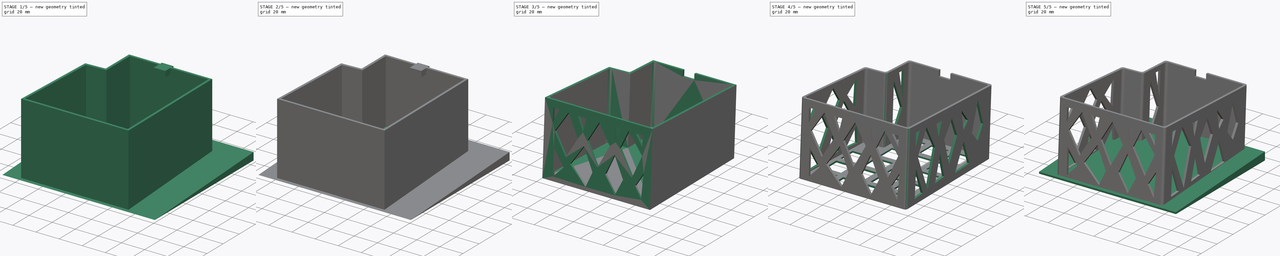
[diagram: build sequence overview — one tinted view per stage of 5, left to right]
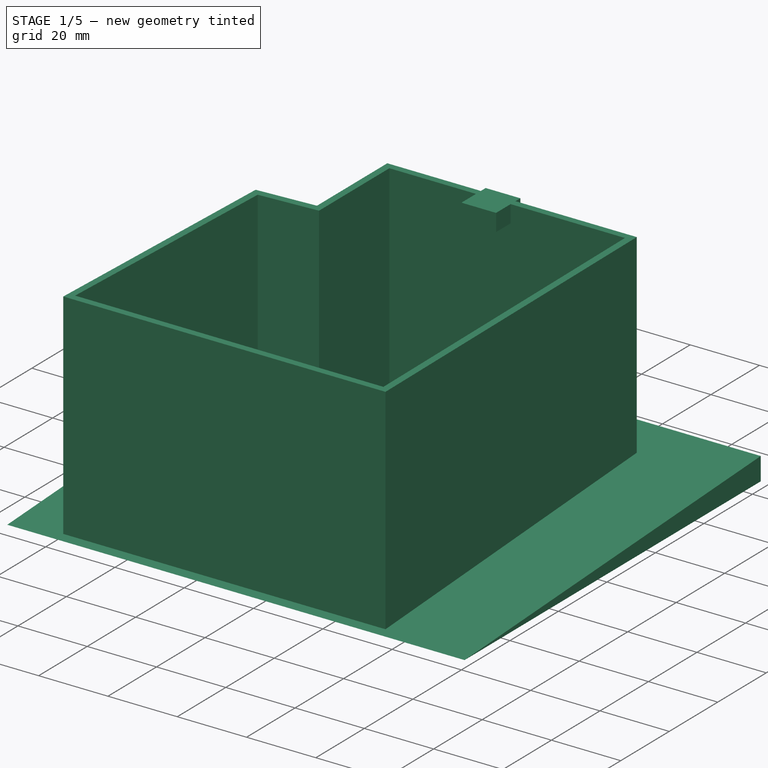
[diagram: stage 1 of 5 — iso view after this stage's code; geometry added in this stage tinted green]
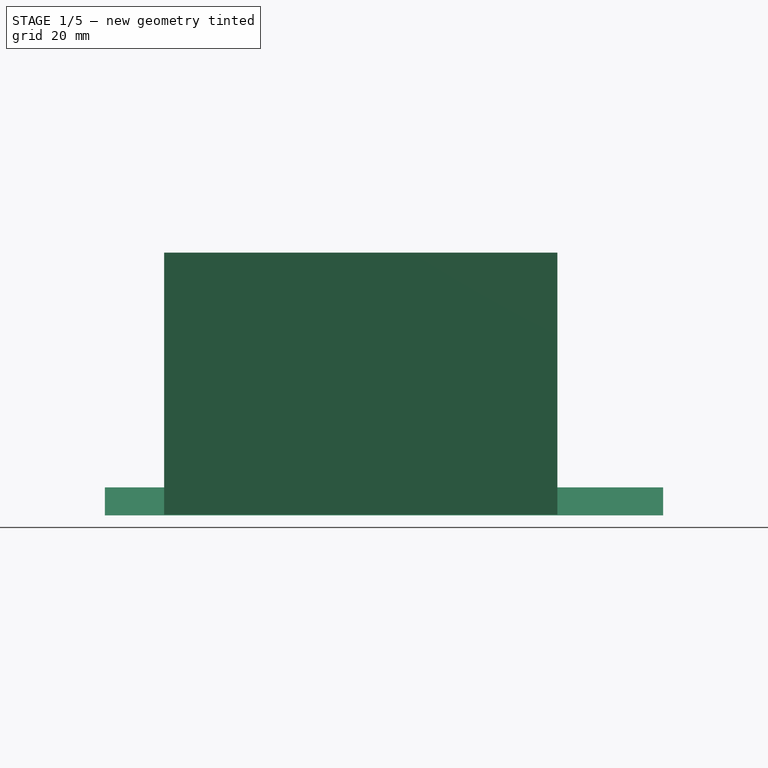
[diagram: stage 1 of 5 — front view after this stage's code; geometry added in this stage tinted green]
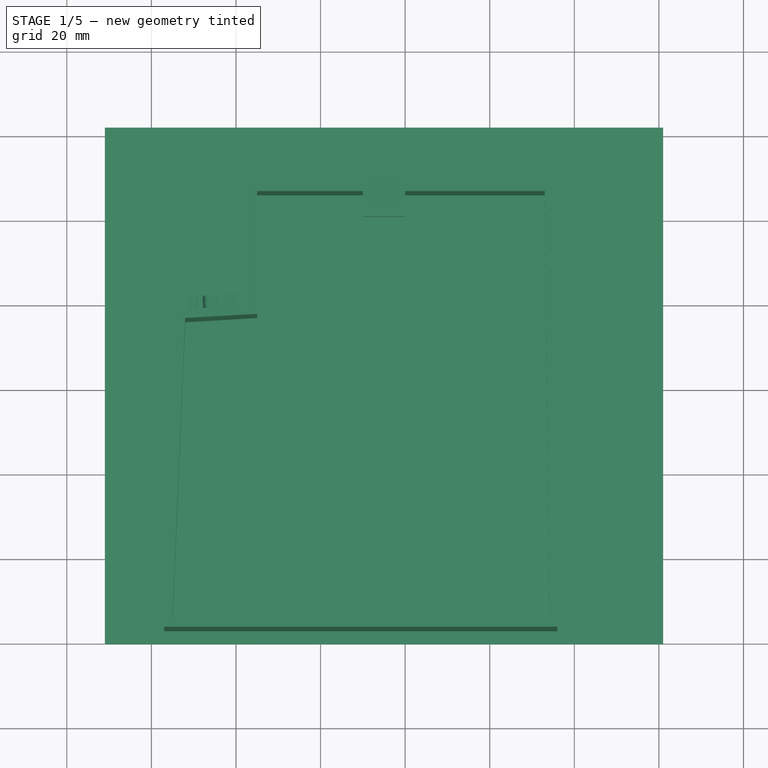
[diagram: stage 1 of 5 — top view after this stage's code; geometry added in this stage tinted green]
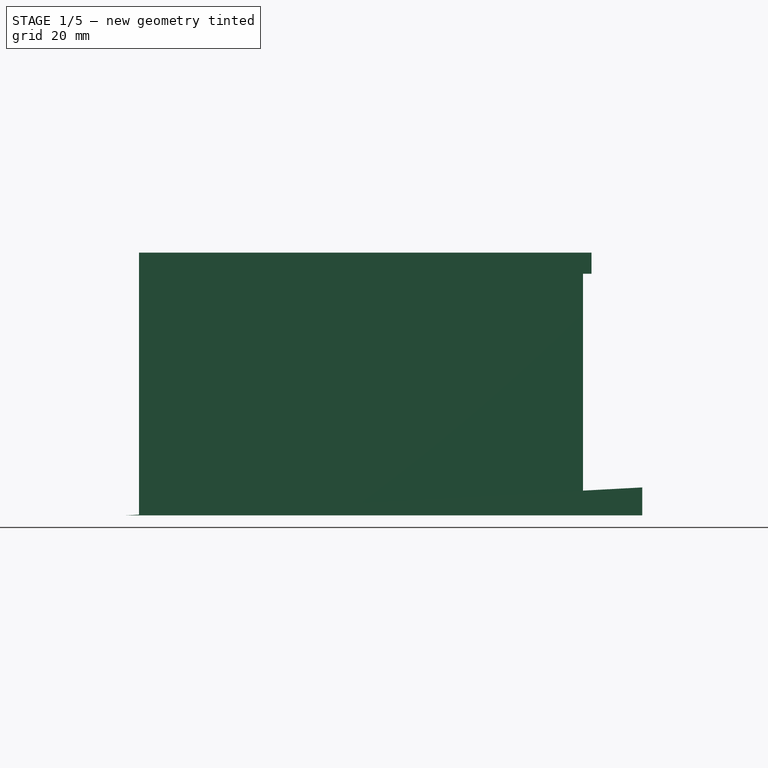
[diagram: stage 1 of 5 — right view after this stage's code; geometry added in this stage tinted green]
FCSTD DOCUMENT  (FreeCAD 0.16R6700 (Git))
Label: Essenza-Bucket-v2
License: FreeArt
LicenseURL: http://artlibre.org/licence/lal
objects: Part::Plane×121, Part::MultiFuse×12, Part::Feature×8, Sketcher::SketchObject×7, App::MeasureDistance×7, Part::Extrusion×4, Part::FeaturePython×4, PartDesign::Pocket×4, Part::Cut×3, Part::Common×2, Part::Fuse×2, PartDesign::Fillet×2, Part::Box×1, Part::Part2DObjectPython×1, PartDesign::Pad×1
note: 177 computed .brp shape members not serialized (recipe doc carries the construction recipe); baked Part::Feature solids carry a one-line shape summary decoded from their .brp

FEATURE [Part::Feature] wire003
  shape: bbox 93 x 105 x 2e-07 mm, 1 faces, 0 solids (baked)
FEATURE [Part::Feature] wire004
  shape: bbox 89 x 101 x 2e-07 mm, 1 faces, 0 solids (baked)
FEATURE [Part::Cut] difference001
  Base = -> wire003
  Tool = -> wire004
FEATURE [Part::Extrusion] LinearExtrude002
  Base = -> difference001
  Dir = (0,0,62)
  Solid = true
FEATURE [Part::Feature] Matrix_Deformation001
  Placement = pos=(-10,-0.1,-0.1) rot=(0.57735,0.57735,0.57735;2.0944rad)
  shape: bbox 132 x 122.1 x 6.6 mm, 5 faces (baked)
FEATURE [Part::Box] cube
  Height = 5
  Length = 10
  Placement = pos=(50,100,57) rot=(0,0,1;0rad)
  Width = 10
FEATURE [Part::Fuse] union001
  Base = -> Matrix_Deformation001
  Tool = -> cube
FEATURE [Sketcher::SketchObject] Sketch004
  Placement = pos=(0,107.842,-5.84051) rot=(0,0.725975,0.687721;3.14159rad)
  Support = -> Pocket003 [Face188]
  sketch-geometry (28):
    g0: LineSegment StartX=-84.7177 StartY=11.9218 StartZ=0 EndX=-79.8609 EndY=11.9218 EndZ=0
    g1: LineSegment StartX=-79.8609 StartY=11.9218 StartZ=0 EndX=-84.7177 EndY=22.3448 EndZ=0
    g2: LineSegment StartX=-84.7177 StartY=22.3448 StartZ=0 EndX=-84.7177 EndY=11.9218 EndZ=0
    g3: LineSegment StartX=-84.9158 StartY=34.0002 StartZ=0 EndX=-73.0329 EndY=11.2406 EndZ=0
    g4: LineSegment StartX=-73.0329 StartY=11.2406 StartZ=0 EndX=-66.8192 EndY=26.5122 EndZ=0
    g5: LineSegment StartX=-66.8192 StartY=26.5122 StartZ=0 EndX=-79.0449 EndY=42.8124 EndZ=0
    g6: LineSegment StartX=-79.0449 StartY=42.8124 StartZ=0 EndX=-84.9158 EndY=34.0002 EndZ=0
    g7: LineSegment StartX=-85.6071 StartY=53.9888 StartZ=0 EndX=-86.1978 EndY=40.9342 EndZ=0
    g8: LineSegment StartX=-86.1978 StartY=40.9342 StartZ=0 EndX=-81.0931 EndY=53.9888 EndZ=0
    g9: LineSegment StartX=-81.0931 StartY=53.9888 StartZ=0 EndX=-85.6071 EndY=53.9888 EndZ=0
    g10: LineSegment StartX=-73.5448 StartY=46.852 StartZ=0 EndX=-63.5758 EndY=33.6804 EndZ=0
    g11: LineSegment StartX=-63.5758 StartY=33.6804 StartZ=0 EndX=-60.4219 EndY=44.9094 EndZ=0
    g12: LineSegment StartX=-60.4219 StartY=44.9094 StartZ=0 EndX=-68.1848 EndY=56.0531 EndZ=0
    g13: LineSegment StartX=-68.1848 StartY=56.0531 StartZ=0 EndX=-73.5448 EndY=46.852 EndZ=0
    g14: LineSegment StartX=-43.0197 StartY=56.3429 StartZ=0 EndX=-50.6216 EndY=44.0218 EndZ=0
    g15: LineSegment StartX=-50.6216 StartY=44.0218 StartZ=0 EndX=-41.1773 EndY=33.5585 EndZ=0
    g16: LineSegment StartX=-41.1773 StartY=33.5585 StartZ=0 EndX=-33.3271 EndY=43.5145 EndZ=0
    g17: LineSegment StartX=-33.3271 StartY=43.5145 StartZ=0 EndX=-43.0197 EndY=56.3429 EndZ=0
    g18: LineSegment StartX=-54.6851 StartY=38.7128 StartZ=0 EndX=-59.0135 EndY=28.5351 EndZ=0
    g19: LineSegment StartX=-59.0135 StartY=28.5351 StartZ=0 EndX=-49.3085 EndY=16.0428 EndZ=0
    g20: LineSegment StartX=-49.3085 StartY=16.0428 StartZ=0 EndX=-43.8876 EndY=26.3453 EndZ=0
    g21: LineSegment StartX=-43.8876 StartY=26.3453 StartZ=0 EndX=-54.6851 EndY=38.7128 EndZ=0
    g22: LineSegment StartX=-62.3586 StartY=21.0051 StartZ=0 EndX=-65.8909 EndY=11.5879 EndZ=0
    g23: LineSegment StartX=-65.8909 StartY=11.5879 StartZ=0 EndX=-56.7565 EndY=11.5879 EndZ=0
    g24: LineSegment StartX=-56.7565 StartY=11.5879 StartZ=0 EndX=-62.3586 EndY=21.0051 EndZ=0
    g25: LineSegment StartX=-33.8502 StartY=29.4647 StartZ=0 EndX=-42.7702 EndY=12.2259 EndZ=0
    g26: LineSegment StartX=-42.7702 StartY=12.2259 StartZ=0 EndX=-35.09 EndY=11.7205 EndZ=0
    g27: LineSegment StartX=-35.09 StartY=11.7205 StartZ=0 EndX=-33.8502 EndY=29.4647 EndZ=0
  constraints (32):
    c: Horizontal(g0)
    c: Coincident(g0,g1)
    c: Coincident(g1,g2)
    c: Coincident(g2,g0)
    c: Vertical(g2)
    c: Coincident(g3,g4)
    c: Coincident(g4,g5)
    c: Coincident(g5,g6)
    c: Coincident(g6,g3)
    c: Coincident(g7,g8)
    c: Coincident(g8,g9)
    c: Coincident(g9,g7)
    c: Horizontal(g9)
    c: Coincident(g10,g11)
    c: Coincident(g11,g12)
    c: Coincident(g12,g13)
    c: Coincident(g13,g10)
    c: Coincident(g14,g15)
    c: Coincident(g15,g16)
    c: Coincident(g16,g17)
    c: Coincident(g17,g14)
    c: Coincident(g18,g19)
    c: Coincident(g19,g20)
    c: Coincident(g20,g21)
    c: Coincident(g21,g18)
    c: Coincident(g22,g23)
    c: Horizontal(g23)
    c: Coincident(g23,g24)
    c: Coincident(g24,g22)
    c: Coincident(g25,g26)
    c: Coincident(g26,g27)
    c: Coincident(g27,g25)
FEATURE [Sketcher::SketchObject] Sketch005
  Placement = pos=(-4.42759,75.1588,-4.07045) rot=(0.999088,0.030993,0.02936;1.5176rad)
FEATURE [Sketcher::SketchObject] Sketch006
  Placement = pos=(-4.55172,77.2661,-4.18458) rot=(-0.020206,0.725827,0.687581;3.18425rad)
  sketch-geometry (8):
    g0: LineSegment StartX=-19.9614 StartY=58.8 StartZ=0 EndX=-23.678 EndY=52.5 EndZ=0
    g1: LineSegment StartX=-23.678 StartY=52.5 StartZ=0 EndX=-21 EndY=48.3 EndZ=0
    g2: LineSegment StartX=-21 StartY=48.3 StartZ=0 EndX=-18.9 EndY=51.4127 EndZ=0
    g3: LineSegment StartX=-18.9 StartY=51.4127 StartZ=0 EndX=-19.9614 EndY=58.8 EndZ=0
    g4: LineSegment StartX=-15.6639 StartY=48.3 StartZ=0 EndX=-23.1 EndY=35.7 EndZ=0
    g5: LineSegment StartX=-23.1 StartY=35.7 StartZ=0 EndX=-19.7291 EndY=25.2 EndZ=0
    g6: LineSegment StartX=-19.7291 StartY=25.2 StartZ=0 EndX=-15.1994 EndY=39.9 EndZ=0
    g7: LineSegment StartX=-15.1994 StartY=39.9 StartZ=0 EndX=-15.6639 EndY=48.3 EndZ=0
  constraints (8):
    c: Coincident(g0,g1)
    c: Coincident(g1,g2)
    c: Coincident(g2,g3)
    c: Coincident(g3,g0)
    c: Coincident(g4,g5)
    c: Coincident(g5,g6)
    c: Coincident(g6,g7)
    c: Coincident(g7,g4)
FEATURE [Part::Part2DObjectPython] ShapeString  # Draft 2D object (typed FeaturePython)
  FontFile = <path>
  Placement = pos=(21,80,5) rot=(-0.020205,0.725827,0.687581;3.18425rad)
  Size = 5
  String = ERL
  Tracking = 14
FEATURE [PartDesign::Pad] Pad
  Length = 5
  Length2 = 100
  Midplane = true
  Placement = pos=(21,80,5) rot=(-0.020205,0.725827,0.687581;3.18425rad)
  Reversed = true
  Sketch = -> ShapeString
  Type = 0
FEATURE [App::MeasureDistance] Distance  label="Distance: 92,8873 mm"
  Distance = 92.8873
  P1 = (3.09004,8.59622,61.6253)
  P2 = (95.9773,8.73335,61.6179)
FEATURE [App::MeasureDistance] Distance001  label="Distance: 75,1861 mm"
  Distance = 75.1861
  P1 = (5.8976,6.3485,61.747)
  P2 = (8.43575,81.3818,57.6834)
FEATURE [App::MeasureDistance] Distance002  label="Distance: 89,4206 mm"
  Distance = 89.4206
  P1 = (5.88777,78.4371,57.8429)
  P2 = (95.3048,79.2354,57.7996)
FEATURE [App::MeasureDistance] Distance003  label="Distance: 105,005 mm"
  Distance = 105.005
  P1 = (76.4132,111.195,56.0688)
  P2 = (75.4242,6.3485,61.747)
FEATURE [App::MeasureDistance] Distance004  label="Distance: 72,1032 mm"
  Distance = 72.1032
  P1 = (23,100.802,56.6316)
  P2 = (95.1024,100.462,56.65)
FEATURE [App::MeasureDistance] Distance005  label="Distance: 61,9739 mm"
  Distance = 61.9739
  P1 = (49.1422,6.3485,61.747)
  P2 = (51.1325,2.99875,-0.104213)
FEATURE [App::MeasureDistance] Distance006  label="Distance: 56,3316 mm"
  Distance = 56.3316
  P1 = (68.5024,111.195,56.0688)
  P2 = (65.7883,108.152,-0.115117)
note: 1 file-system path scrubbed to <path> (originals preserved in the JSON sidecar)
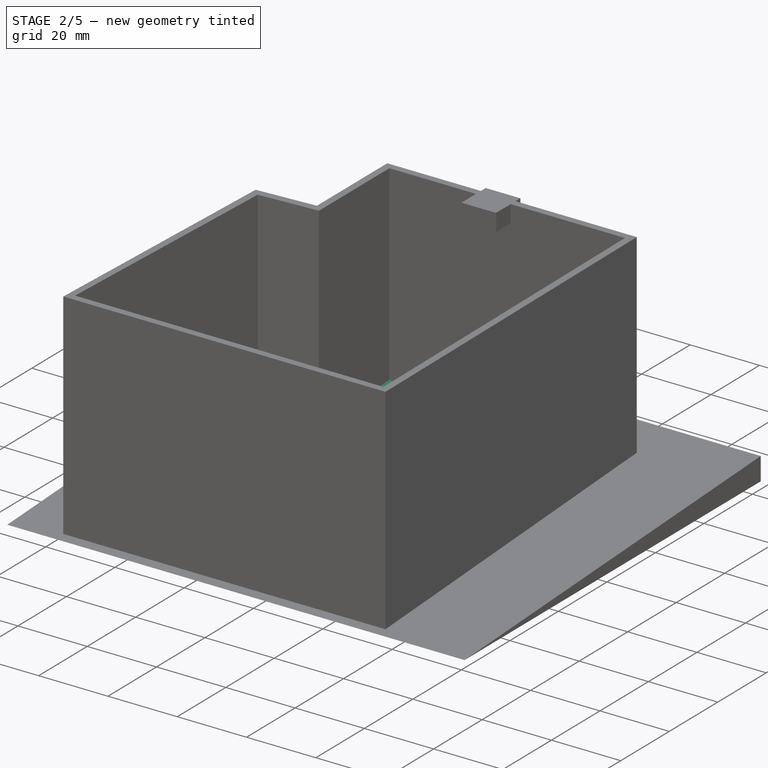
[diagram: stage 2 of 5 — iso view after this stage's code; geometry added in this stage tinted green]
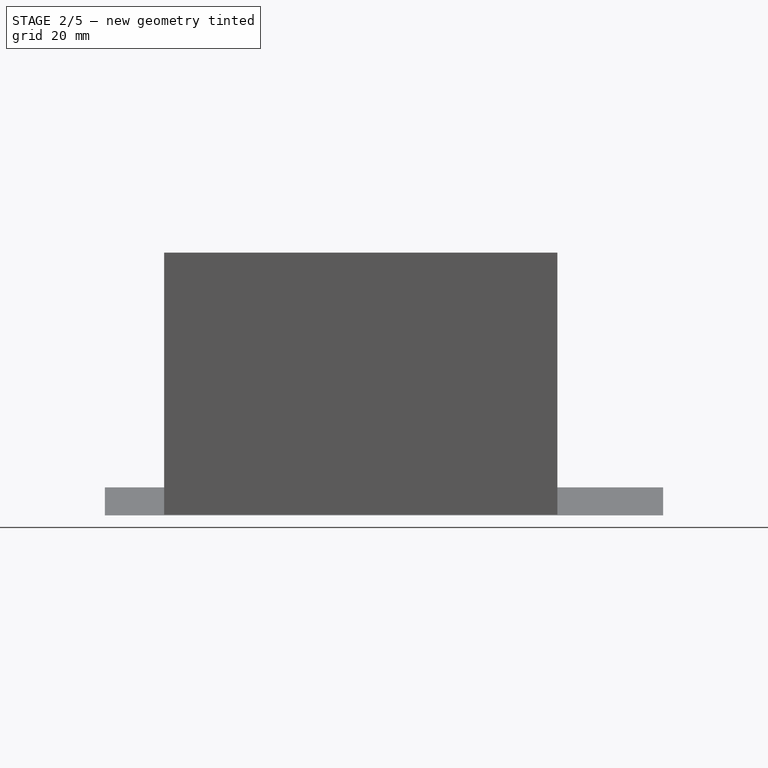
[diagram: stage 2 of 5 — front view after this stage's code; geometry added in this stage tinted green]
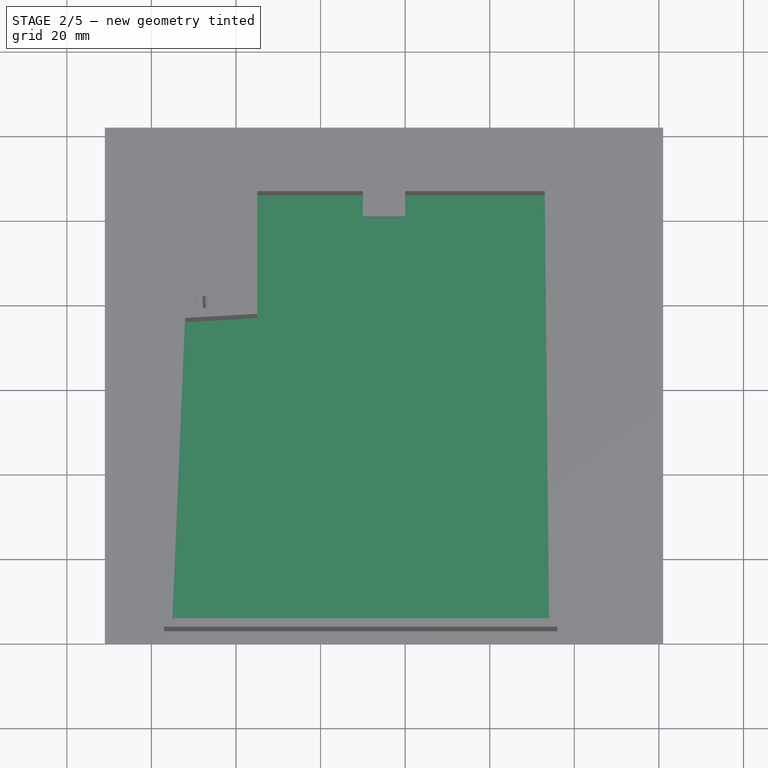
[diagram: stage 2 of 5 — top view after this stage's code; geometry added in this stage tinted green]
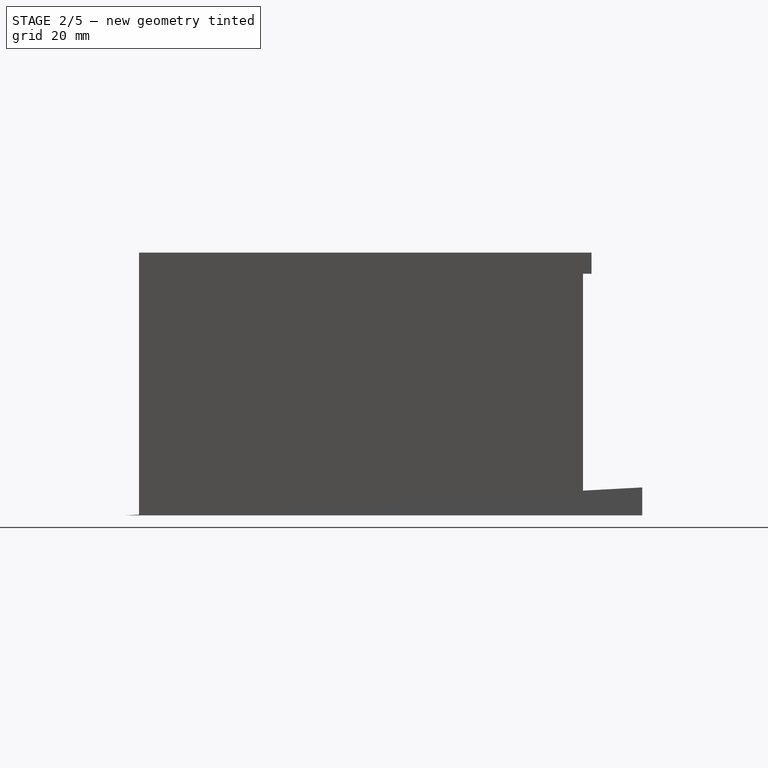
[diagram: stage 2 of 5 — right view after this stage's code; geometry added in this stage tinted green]
FEATURE [Part::Feature] wire
  shape: bbox 89 x 101 x 2e-07 mm, 1 faces, 0 solids (baked)
FEATURE [Part::Feature] wire001
  shape: bbox 120 x 120 x 2e-07 mm, 1 faces, 0 solids (baked)
FEATURE [Part::Plane] square
  Length = 15
  Placement = pos=(2.5,-97.5,0) rot=(0,0,1;0rad)
  Width = 15
FEATURE [Part::Plane] square001 .. square010  x10 (patterned run collapsed; names and placements below)
  Length = 15
  Width = 15
  placements: 10 in arithmetic series — first pos=(22.5,-97.5,0) rot=(0,0,1;0rad), step (20,0,0), last pos=(202.5,-97.5,0) rot=(0,0,1;0rad)
FEATURE [Part::MultiFuse] Group
  Shapes = -> [square,square001,square002,square003,square004,square005,square006,square007,square008,square009,square010]
FEATURE [Part::Plane] square011 .. square021  x11 (patterned run collapsed; names and placements below)
  Length = 15
  Width = 15
  placements: 11 in arithmetic series — first pos=(2.5,-77.5,0) rot=(0,0,1;0rad), step (20,0,0), last pos=(202.5,-77.5,0) rot=(0,0,1;0rad)
FEATURE [Part::MultiFuse] Group001
  Shapes = -> [square011,square012,square013,square014,square015,square016,square017,square018,square019,square020,square021]
FEATURE [Part::Plane] square022 .. square032  x11 (patterned run collapsed; names and placements below)
  Length = 15
  Width = 15
  placements: 11 in arithmetic series — first pos=(2.5,-57.5,0) rot=(0,0,1;0rad), step (20,0,0), last pos=(202.5,-57.5,0) rot=(0,0,1;0rad)
FEATURE [Part::MultiFuse] Group002
  Shapes = -> [square022,square023,square024,square025,square026,square027,square028,square029,square030,square031,square032]
FEATURE [Part::Plane] square033 .. square043  x11 (patterned run collapsed; names and placements below)
  Length = 15
  Width = 15
  placements: 11 in arithmetic series — first pos=(2.5,-37.5,0) rot=(0,0,1;0rad), step (20,0,0), last pos=(202.5,-37.5,0) rot=(0,0,1;0rad)
FEATURE [Part::MultiFuse] Group003
  Shapes = -> [square033,square034,square035,square036,square037,square038,square039,square040,square041,square042,square043]
FEATURE [Part::Plane] square044 .. square054  x11 (patterned run collapsed; names and placements below)
  Length = 15
  Width = 15
  placements: 11 in arithmetic series — first pos=(2.5,-17.5,0) rot=(0,0,1;0rad), step (20,0,0), last pos=(202.5,-17.5,0) rot=(0,0,1;0rad)
FEATURE [Part::MultiFuse] Group004
  Shapes = -> [square044,square045,square046,square047,square048,square049,square050,square051,square052,square053,square054]
FEATURE [Part::Plane] square055 .. square065  x11 (patterned run collapsed; names and placements below)
  Length = 15
  Width = 15
  placements: 11 in arithmetic series — first pos=(2.5,2.5,0) rot=(0,0,1;0rad), step (20,0,0), last pos=(202.5,2.5,0) rot=(0,0,1;0rad)
FEATURE [Part::MultiFuse] Group005
  Shapes = -> [square055,square056,square057,square058,square059,square060,square061,square062,square063,square064,square065]
FEATURE [Part::Plane] square066 .. square076  x11 (patterned run collapsed; names and placements below)
  Length = 15
  Width = 15
  placements: 11 in arithmetic series — first pos=(2.5,22.5,0) rot=(0,0,1;0rad), step (20,0,0), last pos=(202.5,22.5,0) rot=(0,0,1;0rad)
FEATURE [Part::MultiFuse] Group006
  Shapes = -> [square066,square067,square068,square069,square070,square071,square072,square073,square074,square075,square076]
FEATURE [Part::Plane] square077 .. square087  x11 (patterned run collapsed; names and placements below)
  Length = 15
  Width = 15
  placements: 11 in arithmetic series — first pos=(2.5,42.5,0) rot=(0,0,1;0rad), step (20,0,0), last pos=(202.5,42.5,0) rot=(0,0,1;0rad)
FEATURE [Part::MultiFuse] Group007
  Shapes = -> [square077,square078,square079,square080,square081,square082,square083,square084,square085,square086,square087]
FEATURE [Part::Plane] square088 .. square098  x11 (patterned run collapsed; names and placements below)
  Length = 15
  Width = 15
  placements: 11 in arithmetic series — first pos=(2.5,62.5,0) rot=(0,0,1;0rad), step (20,0,0), last pos=(202.5,62.5,0) rot=(0,0,1;0rad)
FEATURE [Part::MultiFuse] Group008
  Shapes = -> [square088,square089,square090,square091,square092,square093,square094,square095,square096,square097,square098]
FEATURE [Part::Plane] square099 .. square109  x11 (patterned run collapsed; names and placements below)
  Length = 15
  Width = 15
  placements: 11 in arithmetic series — first pos=(2.5,82.5,0) rot=(0,0,1;0rad), step (20,0,0), last pos=(202.5,82.5,0) rot=(0,0,1;0rad)
FEATURE [Part::MultiFuse] Group009
  Shapes = -> [square099,square100,square101,square102,square103,square104,square105,square106,square107,square108,square109]
FEATURE [Part::Plane] square110 .. square120  x11 (patterned run collapsed; names and placements below)
  Length = 15
  Width = 15
  placements: 11 in arithmetic series — first pos=(2.5,102.5,0) rot=(0,0,1;0rad), step (20,0,0), last pos=(202.5,102.5,0) rot=(0,0,1;0rad)
FEATURE [Part::MultiFuse] Group010
  Shapes = -> [square110,square111,square112,square113,square114,square115,square116,square117,square118,square119,square120]
FEATURE [Part::MultiFuse] Group011
  Placement = pos=(0,0,-5) rot=(0,0,1;0.785398rad)
  Shapes = -> [Group,Group001,Group002,Group003,Group004,Group005,Group006,Group007,Group008,Group009,Group010]
FEATURE [Part::Cut] difference
  Base = -> wire001
  Tool = -> Group011
FEATURE [Part::Common] intersection
  Base = -> wire
  Tool = -> difference
FEATURE [Part::Extrusion] LinearExtrude
  Base = -> intersection
  Dir = (0,0,10)
  Solid = true
FEATURE [Part::FeaturePython] RefineLinearExtrude  # WARN: FeaturePython — macro-defined, semantics opaque (R4)
  Base = -> LinearExtrude
FEATURE [Part::Feature] Matrix_Deformation
  Placement = pos=(-10,-0.1,-0.1) rot=(0.57735,0.57735,0.57735;2.0944rad)
  shape: bbox 132 x 122.7 x 7.7 mm, 6 faces (baked)
FEATURE [Part::Common] intersection001
  Base = -> RefineLinearExtrude
  Tool = -> Matrix_Deformation
FEATURE [Part::FeaturePython] RefineLinearExtrude002  # WARN: FeaturePython — macro-defined, semantics opaque (R4)
  Base = -> LinearExtrude002
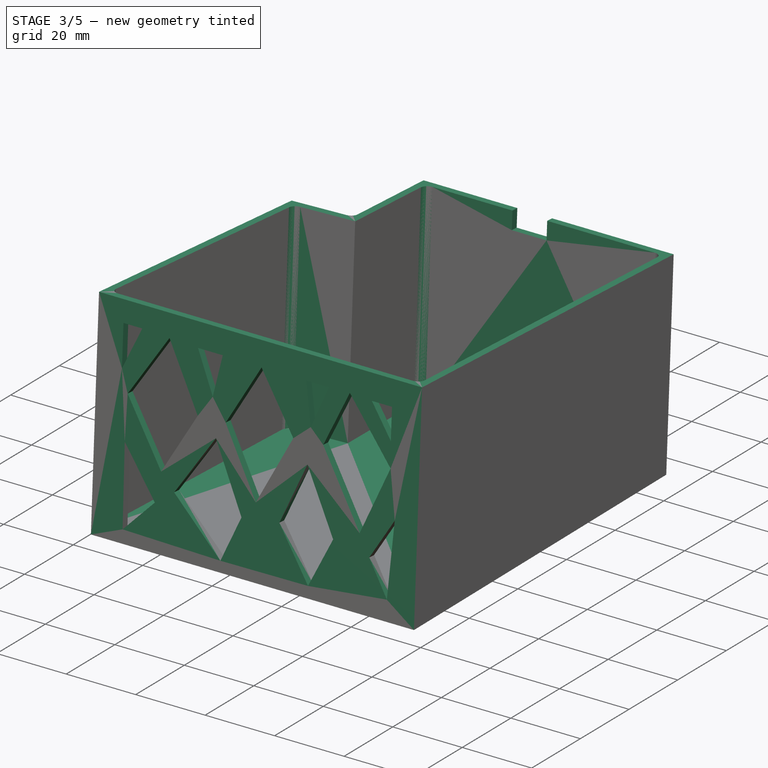
[diagram: stage 3 of 5 — iso view after this stage's code; geometry added in this stage tinted green]
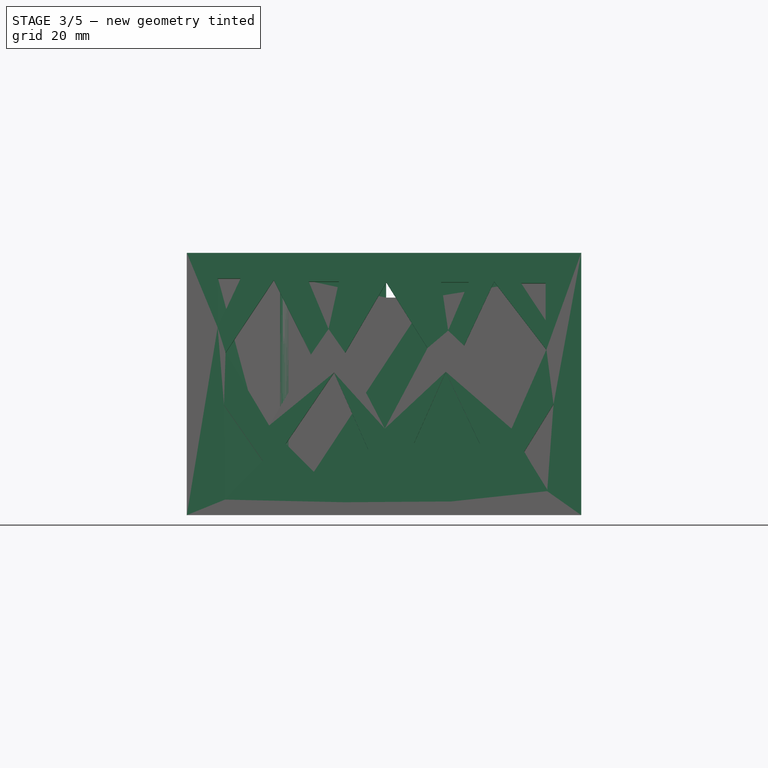
[diagram: stage 3 of 5 — front view after this stage's code; geometry added in this stage tinted green]
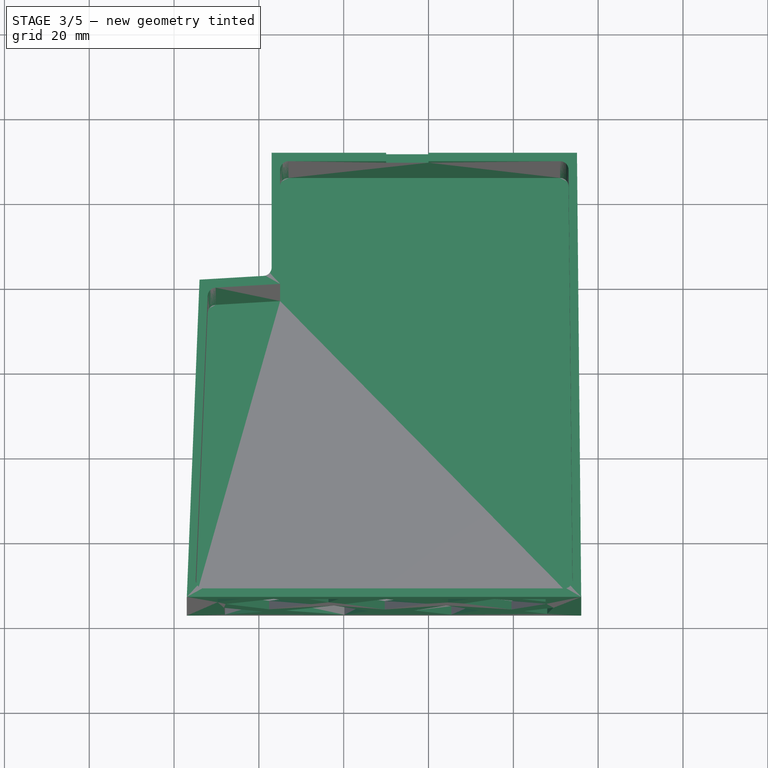
[diagram: stage 3 of 5 — top view after this stage's code; geometry added in this stage tinted green]
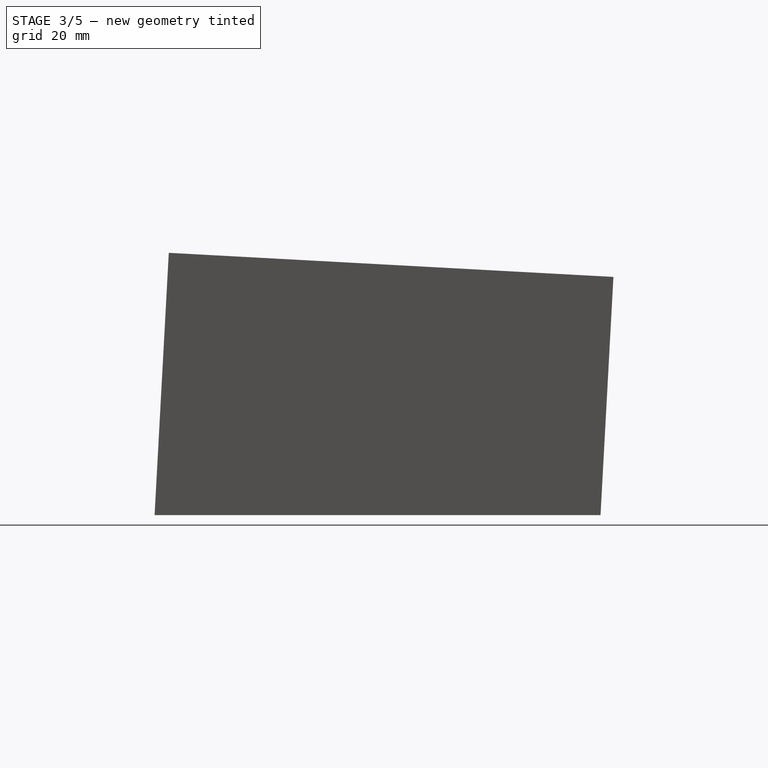
[diagram: stage 3 of 5 — right view after this stage's code; geometry added in this stage tinted green]
FEATURE [Part::Fuse] union
  Base = -> intersection001
  Tool = -> RefineLinearExtrude002
FEATURE [Part::Cut] difference002
  Base = -> union
  Placement = pos=(0,0,0) rot=(-1,0,0;0.054105rad)
  Tool = -> union001
FEATURE [Sketcher::SketchObject] Sketch
  Placement = pos=(0,2.99561,-0.162236) rot=(1,0,0;1.51669rad)
  Support = -> difference002 [Face9]
  sketch-geometry (39):
    g0: LineSegment StartX=23.5347 StartY=55.5934 StartZ=0 EndX=12.1398 EndY=38.4077 EndZ=0
    g1: LineSegment StartX=12.1398 StartY=38.4077 StartZ=0 EndX=22.4139 EndY=21.222 EndZ=0
    g2: LineSegment StartX=22.4139 StartY=21.222 StartZ=0 EndX=32.3143 EndY=38.0341 EndZ=0
    g3: LineSegment StartX=32.3143 StartY=38.0341 StartZ=0 EndX=23.5347 EndY=55.5934 EndZ=0
    g4: LineSegment StartX=31.7539 StartY=55.2237 StartZ=0 EndX=36.4239 EndY=44.0117 EndZ=0
    g5: LineSegment StartX=36.4239 StartY=44.0117 StartZ=0 EndX=38.8825 EndY=55.2237 EndZ=0
    g6: LineSegment StartX=38.8825 StartY=55.2237 StartZ=0 EndX=31.7539 EndY=55.2237 EndZ=0
    g7: LineSegment StartX=37.7315 StartY=33.7377 StartZ=0 EndX=26.3367 EndY=16.9256 EndZ=0
    g8: LineSegment StartX=26.3367 StartY=16.9256 StartZ=0 EndX=40.16 EndY=3.10233 EndZ=0
    g9: LineSegment StartX=40.16 StartY=3.10233 StartZ=0 EndX=45.764 EndY=15.618 EndZ=0
    g10: LineSegment StartX=45.764 StartY=15.618 StartZ=0 EndX=37.7315 EndY=33.7377 EndZ=0
    g11: LineSegment StartX=40.3468 StartY=38.4077 StartZ=0 EndX=49.6868 EndY=20.4748 EndZ=0
    g12: LineSegment StartX=49.6868 StartY=20.4748 StartZ=0 EndX=59.7741 EndY=39.5285 EndZ=0
    g13: LineSegment StartX=59.7741 StartY=39.5285 StartZ=0 EndX=50.0604 EndY=55.033 EndZ=0
    g14: LineSegment StartX=50.0604 StartY=55.033 StartZ=0 EndX=40.3468 EndY=38.4077 EndZ=0
    g15: LineSegment StartX=11.7662 StartY=26.0788 StartZ=0 EndX=20.9174 EndY=12.8947 EndZ=0
    g16: LineSegment StartX=20.9174 StartY=12.8947 StartZ=0 EndX=11.9981 EndY=3.72414 EndZ=0
    g17: LineSegment StartX=11.9981 StartY=3.72414 StartZ=0 EndX=11.7662 EndY=26.0788 EndZ=0
    g18: LineSegment StartX=62.9576 StartY=55.0838 StartZ=0 EndX=64.6309 EndY=43.6381 EndZ=0
    g19: LineSegment StartX=64.6309 StartY=43.6381 StartZ=0 EndX=69.4877 EndY=55.0838 EndZ=0
    g20: LineSegment StartX=69.4877 StartY=55.0838 StartZ=0 EndX=62.9576 EndY=55.0838 EndZ=0
    g21: LineSegment StartX=75.4653 StartY=55.2198 StartZ=0 EndX=68.3669 EndY=40.0889 EndZ=0
    g22: LineSegment StartX=68.3669 StartY=40.0889 StartZ=0 EndX=79.575 EndY=20.4748 EndZ=0
    g23: LineSegment StartX=79.575 StartY=20.4748 StartZ=0 EndX=87.7942 EndY=39.1549 EndZ=0
    g24: LineSegment StartX=87.7942 StartY=39.1549 StartZ=0 EndX=75.4653 EndY=55.2198 EndZ=0
    g25: LineSegment StartX=81.8166 StartY=54.8462 StartZ=0 EndX=87.6074 EndY=46.0666 EndZ=0
    g26: LineSegment StartX=87.6074 StartY=46.0666 StartZ=0 EndX=87.6074 EndY=54.8462 EndZ=0
    g27: LineSegment StartX=87.6074 StartY=54.8462 StartZ=0 EndX=81.8166 EndY=54.8462 EndZ=0
    g28: LineSegment StartX=64.0705 StartY=33.9245 StartZ=0 EndX=56.5985 EndY=17.1124 EndZ=0
    g29: LineSegment StartX=56.5985 StartY=17.1124 StartZ=0 EndX=65.3781 EndY=3.28913 EndZ=0
    g30: LineSegment StartX=65.3781 StartY=3.28913 StartZ=0 EndX=72.1029 EndY=16.9256 EndZ=0
    g31: LineSegment StartX=72.1029 StartY=16.9256 StartZ=0 EndX=64.0705 EndY=33.9245 EndZ=0
    g32: LineSegment StartX=89.4754 StartY=26.2657 StartZ=0 EndX=82.5638 EndY=15.0576 EndZ=0
    g33: LineSegment StartX=82.5638 StartY=15.0576 StartZ=0 EndX=87.981 EndY=5.71754 EndZ=0
    g34: LineSegment StartX=87.981 StartY=5.71754 StartZ=0 EndX=89.4754 EndY=26.2657 EndZ=0
    g35: LineSegment StartX=10.2718 StartY=55.967 StartZ=0 EndX=10.2718 EndY=44.3854 EndZ=0
    g36: LineSegment StartX=10.2718 StartY=44.3854 StartZ=0 EndX=15.689 EndY=55.967 EndZ=0
    g37: LineSegment StartX=15.689 StartY=55.967 StartZ=0 EndX=10.2718 EndY=55.967 EndZ=0
    g38: GeomPoint [constr] X=40.16 Y=3.10233 Z=0
  constraints (45):
    c: Coincident(g0,g1)
    c: Coincident(g1,g2)
    c: Coincident(g2,g3)
    c: Coincident(g3,g0)
    c: Coincident(g4,g5)
    c: Coincident(g5,g6)
    c: Coincident(g6,g4)
    c: Horizontal(g6)
    c: Coincident(g7,g8)
    c: Coincident(g9,g10)
    c: Coincident(g10,g7)
    c: Coincident(g11,g12)
    c: Coincident(g12,g13)
    c: Coincident(g13,g14)
    c: Coincident(g14,g11)
    c: Coincident(g15,g16)
    c: Coincident(g16,g17)
    c: Coincident(g17,g15)
    c: Coincident(g18,g19)
    c: Coincident(g19,g20)
    c: Coincident(g20,g18)
    c: Horizontal(g20)
    c: Coincident(g21,g22)
    c: Coincident(g22,g23)
    c: Coincident(g23,g24)
    c: Coincident(g24,g21)
    c: Coincident(g25,g26)
    c: Vertical(g26)
    c: Coincident(g26,g27)
    c: Coincident(g27,g25)
    c: Horizontal(g27)
    c: Coincident(g28,g29)
    c: Coincident(g29,g30)
    c: Coincident(g30,g31)
    c: Coincident(g31,g28)
    c: Coincident(g32,g33)
    c: Coincident(g33,g34)
    c: Coincident(g34,g32)
    c: Vertical(g35)
    c: Coincident(g35,g36)
    c: Coincident(g36,g37)
    c: Coincident(g37,g35)
    c: Horizontal(g37)
    c: Coincident(g38,g8)
    c: Coincident(g9,g8)
FEATURE [PartDesign::Pocket] Pocket
  Length = 5
  Placement = pos=(0,0,0) rot=(-1,0,0;0.054105rad)
  Sketch = -> Sketch
  Type = 0
FEATURE [PartDesign::Fillet] Fillet
  Base = -> Pocket [Edge7,Edge48,Edge56,Edge53,Edge8,Edge158]
  Placement = pos=(0,0,0) rot=(-1,0,0;0.054105rad)
  Radius = 2
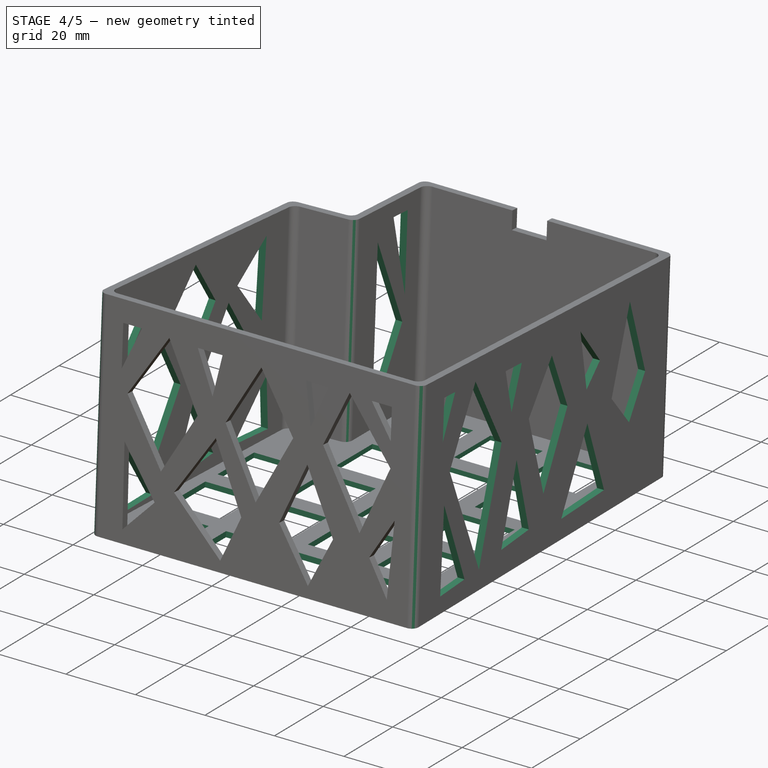
[diagram: stage 4 of 5 — iso view after this stage's code; geometry added in this stage tinted green]
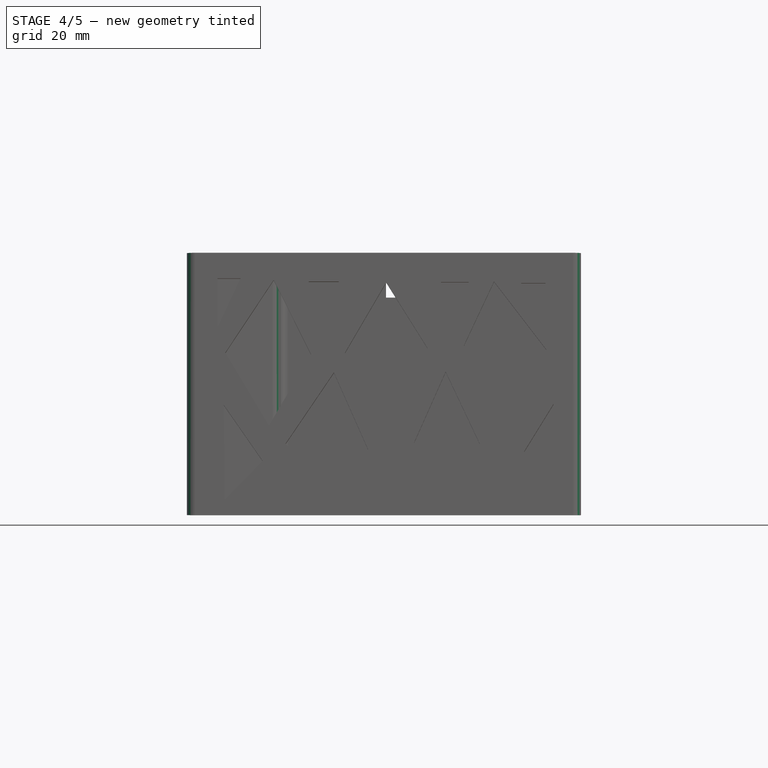
[diagram: stage 4 of 5 — front view after this stage's code; geometry added in this stage tinted green]
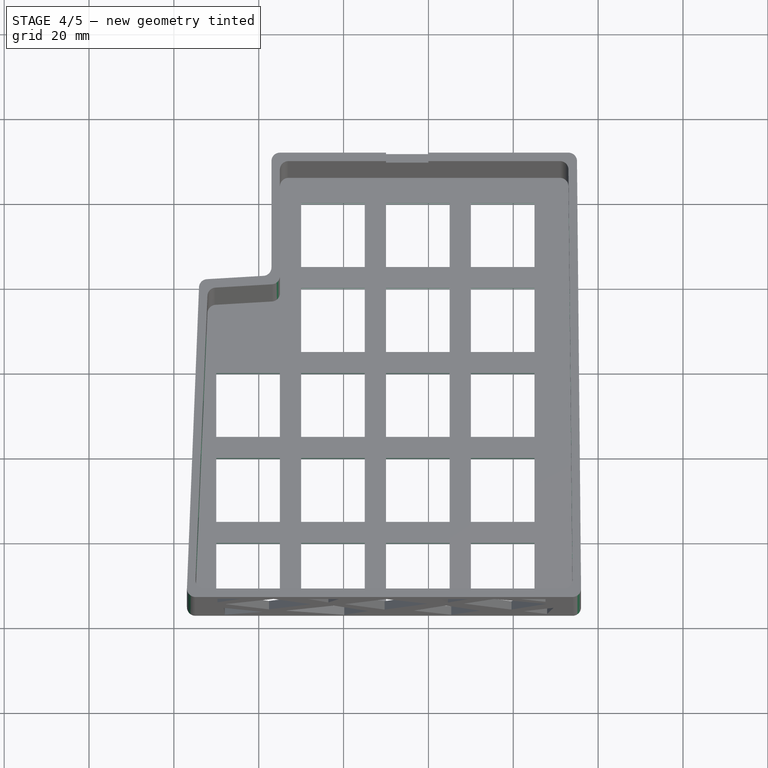
[diagram: stage 4 of 5 — top view after this stage's code; geometry added in this stage tinted green]
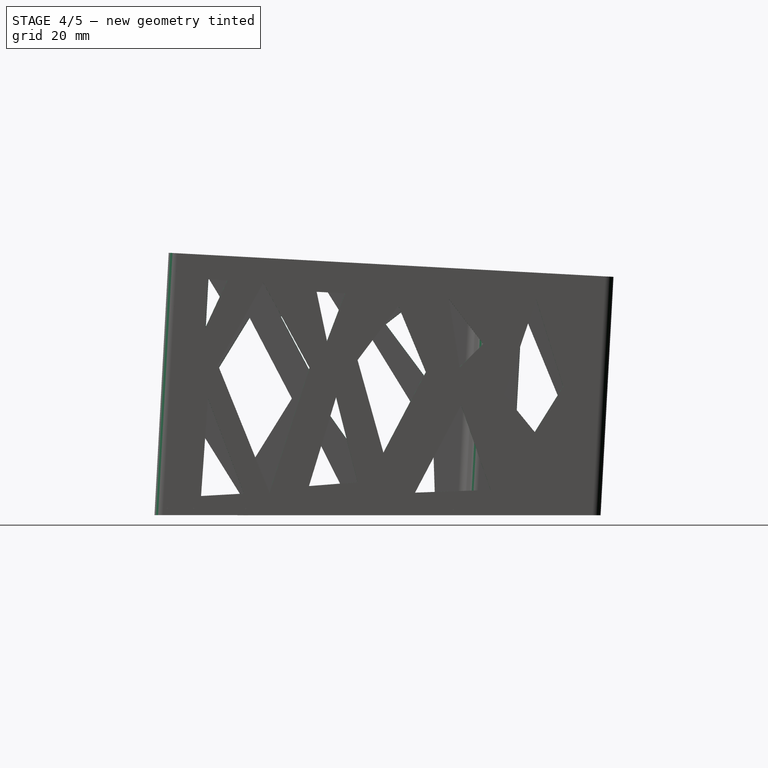
[diagram: stage 4 of 5 — right view after this stage's code; geometry added in this stage tinted green]
FEATURE [PartDesign::Fillet] Fillet001
  Base = -> Fillet [Edge174,Edge168,Edge169,Edge71,Edge171,Edge173]
  Placement = pos=(0,0,0) rot=(-1,0,0;0.054105rad)
  Radius = 2
FEATURE [Sketcher::SketchObject] Sketch001
  Placement = pos=(0,3.35289,61.9093) rot=(-1,0,0;0.054105rad)
  Support = -> Fillet001 [Face14]
  sketch-geometry (72):
    g0: LineSegment StartX=30 StartY=100 StartZ=0 EndX=45 EndY=100 EndZ=0
    g1: LineSegment StartX=45 StartY=100 StartZ=0 EndX=45 EndY=85 EndZ=0
    g2: LineSegment StartX=45 StartY=85 StartZ=0 EndX=30 EndY=85 EndZ=0
    g3: LineSegment StartX=30 StartY=85 StartZ=0 EndX=30 EndY=100 EndZ=0
    g4: LineSegment StartX=50 StartY=100 StartZ=0 EndX=65 EndY=100 EndZ=0
    g5: LineSegment StartX=65 StartY=100 StartZ=0 EndX=65 EndY=85 EndZ=0
    g6: LineSegment StartX=65 StartY=85 StartZ=0 EndX=50 EndY=85 EndZ=0
    g7: LineSegment StartX=50 StartY=85 StartZ=0 EndX=50 EndY=100 EndZ=0
    g8: LineSegment StartX=70 StartY=100 StartZ=0 EndX=85 EndY=100 EndZ=0
    g9: LineSegment StartX=85 StartY=100 StartZ=0 EndX=85 EndY=85 EndZ=0
    g10: LineSegment StartX=85 StartY=85 StartZ=0 EndX=70 EndY=85 EndZ=0
    g11: LineSegment StartX=70 StartY=85 StartZ=0 EndX=70 EndY=100 EndZ=0
    g12: LineSegment StartX=30 StartY=80 StartZ=0 EndX=45 EndY=80 EndZ=0
    g13: LineSegment StartX=45 StartY=80 StartZ=0 EndX=45 EndY=65 EndZ=0
    g14: LineSegment StartX=45 StartY=65 StartZ=0 EndX=30 EndY=65 EndZ=0
    g15: LineSegment StartX=30 StartY=65 StartZ=0 EndX=30 EndY=80 EndZ=0
    g16: LineSegment StartX=50 StartY=80 StartZ=0 EndX=65 EndY=80 EndZ=0
    g17: LineSegment StartX=65 StartY=80 StartZ=0 EndX=65 EndY=65 EndZ=0
    g18: LineSegment StartX=65 StartY=65 StartZ=0 EndX=50 EndY=65 EndZ=0
    g19: LineSegment StartX=50 StartY=65 StartZ=0 EndX=50 EndY=80 EndZ=0
    g20: LineSegment StartX=70 StartY=80 StartZ=0 EndX=85 EndY=80 EndZ=0
    g21: LineSegment StartX=85 StartY=80 StartZ=0 EndX=85 EndY=65 EndZ=0
    g22: LineSegment StartX=85 StartY=65 StartZ=0 EndX=70 EndY=65 EndZ=0
    g23: LineSegment StartX=70 StartY=65 StartZ=0 EndX=70 EndY=80 EndZ=0
    g24: LineSegment StartX=25 StartY=60 StartZ=0 EndX=10 EndY=60 EndZ=0
    g25: LineSegment StartX=10 StartY=60 StartZ=0 EndX=10 EndY=45 EndZ=0
    g26: LineSegment StartX=10 StartY=45 StartZ=0 EndX=25 EndY=45 EndZ=0
    g27: LineSegment StartX=25 StartY=45 StartZ=0 EndX=25 EndY=60 EndZ=0
    g28: LineSegment StartX=50 StartY=60 StartZ=0 EndX=65 EndY=60 EndZ=0
    g29: LineSegment StartX=65 StartY=60 StartZ=0 EndX=65 EndY=45 EndZ=0
    g30: LineSegment StartX=65 StartY=45 StartZ=0 EndX=50 EndY=45 EndZ=0
    g31: LineSegment StartX=50 StartY=45 StartZ=0 EndX=50 EndY=60 EndZ=0
    g32: LineSegment StartX=70 StartY=60 StartZ=0 EndX=85 EndY=60 EndZ=0
    g33: LineSegment StartX=85 StartY=60 StartZ=0 EndX=85 EndY=45 EndZ=0
    g34: LineSegment StartX=85 StartY=45 StartZ=0 EndX=70 EndY=45 EndZ=0
    g35: LineSegment StartX=70 StartY=45 StartZ=0 EndX=70 EndY=60 EndZ=0
    g36: LineSegment StartX=10 StartY=40 StartZ=0 EndX=25 EndY=40 EndZ=0
    g37: LineSegment StartX=25 StartY=40 StartZ=0 EndX=25 EndY=25 EndZ=0
    g38: LineSegment StartX=25 StartY=25 StartZ=0 EndX=10 EndY=25 EndZ=0
    g39: LineSegment StartX=10 StartY=25 StartZ=0 EndX=10 EndY=40 EndZ=0
    g40: LineSegment StartX=30 StartY=40 StartZ=0 EndX=45 EndY=40 EndZ=0
    g41: LineSegment StartX=45 StartY=40 StartZ=0 EndX=45 EndY=25 EndZ=0
    g42: LineSegment StartX=45 StartY=25 StartZ=0 EndX=30 EndY=25 EndZ=0
    g43: LineSegment StartX=30 StartY=25 StartZ=0 EndX=30 EndY=40 EndZ=0
    g44: LineSegment StartX=50 StartY=40 StartZ=0 EndX=65 EndY=40 EndZ=0
    g45: LineSegment StartX=65 StartY=40 StartZ=0 EndX=65 EndY=25 EndZ=0
    g46: LineSegment StartX=65 StartY=25 StartZ=0 EndX=50 EndY=25 EndZ=0
    g47: LineSegment StartX=50 StartY=25 StartZ=0 EndX=50 EndY=40 EndZ=0
    g48: LineSegment StartX=70 StartY=40 StartZ=0 EndX=85 EndY=40 EndZ=0
    g49: LineSegment StartX=85 StartY=40 StartZ=0 EndX=85 EndY=25 EndZ=0
    g50: LineSegment StartX=85 StartY=25 StartZ=0 EndX=70 EndY=25 EndZ=0
    g51: LineSegment StartX=70 StartY=25 StartZ=0 EndX=70 EndY=40 EndZ=0
    g52: LineSegment StartX=30 StartY=60 StartZ=0 EndX=45 EndY=60 EndZ=0
    g53: LineSegment StartX=45 StartY=60 StartZ=0 EndX=45 EndY=45 EndZ=0
    g54: LineSegment StartX=45 StartY=45 StartZ=0 EndX=30 EndY=45 EndZ=0
    g55: LineSegment StartX=30 StartY=45 StartZ=0 EndX=30 EndY=60 EndZ=0
    g56: LineSegment StartX=10 StartY=20 StartZ=0 EndX=25 EndY=20 EndZ=0
    g57: LineSegment StartX=25 StartY=20 StartZ=0 EndX=25 EndY=5 EndZ=0
    g58: LineSegment StartX=25 StartY=5 StartZ=0 EndX=10 EndY=5 EndZ=0
    g59: LineSegment StartX=10 StartY=5 StartZ=0 EndX=10 EndY=20 EndZ=0
    g60: LineSegment StartX=30 StartY=20 StartZ=0 EndX=45 EndY=20 EndZ=0
    g61: LineSegment StartX=45 StartY=20 StartZ=0 EndX=45 EndY=5 EndZ=0
    g62: LineSegment StartX=45 StartY=5 StartZ=0 EndX=30 EndY=5 EndZ=0
    g63: LineSegment StartX=30 StartY=5 StartZ=0 EndX=30 EndY=20 EndZ=0
    g64: LineSegment StartX=50 StartY=20 StartZ=0 EndX=65 EndY=20 EndZ=0
    g65: LineSegment StartX=65 StartY=20 StartZ=0 EndX=65 EndY=5 EndZ=0
    g66: LineSegment StartX=65 StartY=5 StartZ=0 EndX=50 EndY=5 EndZ=0
    g67: LineSegment StartX=50 StartY=5 StartZ=0 EndX=50 EndY=20 EndZ=0
    g68: LineSegment StartX=70 StartY=20 StartZ=0 EndX=85 EndY=20 EndZ=0
    g69: LineSegment StartX=85 StartY=20 StartZ=0 EndX=85 EndY=5 EndZ=0
    g70: LineSegment StartX=85 StartY=5 StartZ=0 EndX=70 EndY=5 EndZ=0
    g71: LineSegment StartX=70 StartY=5 StartZ=0 EndX=70 EndY=20 EndZ=0
  constraints (144):
    c: Coincident(g0,g1)
    c: Coincident(g1,g2)
    c: Coincident(g2,g3)
    c: Coincident(g3,g0)
    c: Horizontal(g0)
    c: Horizontal(g2)
    c: Vertical(g1)
    c: Vertical(g3)
    c: Coincident(g4,g5)
    c: Coincident(g5,g6)
    c: Coincident(g6,g7)
    c: Coincident(g7,g4)
    c: Horizontal(g4)
    c: Horizontal(g6)
    c: Vertical(g5)
    c: Vertical(g7)
    c: Coincident(g8,g9)
    c: Coincident(g9,g10)
    c: Coincident(g10,g11)
    c: Coincident(g11,g8)
    c: Horizontal(g8)
    c: Horizontal(g10)
    c: Vertical(g9)
    c: Vertical(g11)
    c: Coincident(g12,g13)
    c: Coincident(g13,g14)
    c: Coincident(g14,g15)
    c: Coincident(g15,g12)
    c: Horizontal(g12)
    c: Horizontal(g14)
    c: Vertical(g13)
    c: Vertical(g15)
    c: Coincident(g16,g17)
    c: Coincident(g17,g18)
    c: Coincident(g18,g19)
    c: Coincident(g19,g16)
    c: Horizontal(g16)
    c: Horizontal(g18)
    c: Vertical(g17)
    c: Vertical(g19)
    c: Coincident(g20,g21)
    c: Coincident(g21,g22)
    c: Coincident(g22,g23)
    c: Coincident(g23,g20)
    c: Horizontal(g20)
    c: Horizontal(g22)
    c: Vertical(g21)
    c: Vertical(g23)
    c: Coincident(g24,g25)
    c: Coincident(g25,g26)
    c: Coincident(g26,g27)
    c: Coincident(g27,g24)
    c: Horizontal(g24)
    c: Horizontal(g26)
    c: Vertical(g25)
    c: Vertical(g27)
    c: Coincident(g28,g29)
    c: Coincident(g29,g30)
    c: Coincident(g30,g31)
    c: Coincident(g31,g28)
    c: Horizontal(g28)
    c: Horizontal(g30)
    c: Vertical(g29)
    c: Vertical(g31)
    c: Coincident(g32,g33)
    c: Coincident(g33,g34)
    c: Coincident(g34,g35)
    c: Coincident(g35,g32)
    c: Horizontal(g32)
    c: Horizontal(g34)
    c: Vertical(g33)
    c: Vertical(g35)
    c: Coincident(g36,g37)
    c: Coincident(g37,g38)
    c: Coincident(g38,g39)
    c: Coincident(g39,g36)
    c: Horizontal(g36)
    c: Horizontal(g38)
    c: Vertical(g37)
    c: Vertical(g39)
    c: Coincident(g40,g41)
    c: Coincident(g41,g42)
    c: Coincident(g42,g43)
    c: Coincident(g43,g40)
    c: Horizontal(g40)
    c: Horizontal(g42)
    c: Vertical(g41)
    c: Vertical(g43)
    c: Coincident(g44,g45)
    c: Coincident(g45,g46)
    c: Coincident(g46,g47)
    c: Coincident(g47,g44)
    c: Horizontal(g44)
    c: Horizontal(g46)
    c: Vertical(g45)
    c: Vertical(g47)
    c: Coincident(g48,g49)
    c: Coincident(g49,g50)
    c: Coincident(g50,g51)
    c: Coincident(g51,g48)
    c: Horizontal(g48)
    c: Horizontal(g50)
    c: Vertical(g49)
    c: Vertical(g51)
    c: Coincident(g52,g53)
    c: Coincident(g53,g54)
    c: Coincident(g54,g55)
    c: Coincident(g55,g52)
    c: Horizontal(g52)
    c: Horizontal(g54)
    c: Vertical(g53)
    c: Vertical(g55)
    c: Coincident(g56,g57)
    c: Coincident(g57,g58)
    c: Coincident(g58,g59)
    c: Coincident(g59,g56)
    c: Horizontal(g56)
    c: Horizontal(g58)
    c: Vertical(g57)
    c: Vertical(g59)
    c: Coincident(g60,g61)
    c: Coincident(g61,g62)
    c: Coincident(g62,g63)
    c: Coincident(g63,g60)
    c: Horizontal(g60)
    c: Horizontal(g62)
    c: Vertical(g61)
    c: Vertical(g63)
    c: Coincident(g64,g65)
    c: Coincident(g65,g66)
    c: Coincident(g66,g67)
    c: Coincident(g67,g64)
    c: Horizontal(g64)
    c: Horizontal(g66)
    c: Vertical(g65)
    c: Vertical(g67)
    c: Coincident(g68,g69)
    c: Coincident(g69,g70)
    c: Coincident(g70,g71)
    c: Coincident(g71,g68)
    c: Horizontal(g68)
    c: Horizontal(g70)
    c: Vertical(g69)
    c: Vertical(g71)
FEATURE [PartDesign::Pocket] Pocket001
  Length = 5
  Placement = pos=(0,0,0) rot=(-1,0,0;0.054105rad)
  Sketch = -> Sketch001
  Type = 1
FEATURE [Sketcher::SketchObject] Sketch002
  Placement = pos=(2.8754,-0.114848,0.00621992) rot=(0.551285,-0.605693,-0.573777;2.08751rad)
  Support = -> Pocket001 [Face109]
  sketch-geometry (33):
    g0: LineSegment StartX=-12.1937 StartY=2.97049 StartZ=0 EndX=-12.1937 EndY=21.6292 EndZ=0
    g1: LineSegment StartX=-12.1937 StartY=21.6292 StartZ=0 EndX=-24.4289 EndY=4.19402 EndZ=0
    g2: LineSegment StartX=-24.4289 StartY=4.19402 StartZ=0 EndX=-12.1937 EndY=2.97049 EndZ=0
    g3: LineSegment StartX=-13.2642 StartY=29.735 StartZ=0 EndX=-25.4995 EndY=13.6763 EndZ=0
    g4: LineSegment StartX=-25.4995 StartY=13.6763 StartZ=0 EndX=-34.0641 EndY=29.2762 EndZ=0
    g5: LineSegment StartX=-34.0641 StartY=29.2762 StartZ=0 EndX=-23.0524 EndY=47.782 EndZ=0
    g6: LineSegment StartX=-23.0524 StartY=47.782 StartZ=0 EndX=-13.2642 EndY=29.735 EndZ=0
    g7: LineSegment StartX=-17.9539 StartY=49.1426 StartZ=0 EndX=-12.8054 EndY=42.1232 EndZ=0
    g8: LineSegment StartX=-12.8054 StartY=42.1232 StartZ=0 EndX=-12.8054 EndY=56.6525 EndZ=0
    g9: LineSegment StartX=-12.8054 StartY=56.6525 StartZ=0 EndX=-17.9539 EndY=49.1426 EndZ=0
    g10: LineSegment StartX=-30.3587 StartY=48.425 StartZ=0 EndX=-38.9582 EndY=34.1703 EndZ=0
    g11: LineSegment StartX=-38.9582 StartY=34.1703 StartZ=0 EndX=-46.7617 EndY=46.7847 EndZ=0
    g12: LineSegment StartX=-46.7617 StartY=46.7847 StartZ=0 EndX=-38.4994 EndY=58.4878 EndZ=0
    g13: LineSegment StartX=-38.4994 StartY=58.4878 StartZ=0 EndX=-30.3587 EndY=48.425 EndZ=0
    g14: LineSegment StartX=-51.9581 StartY=44.5702 StartZ=0 EndX=-41.864 EndY=27.4409 EndZ=0
    g15: LineSegment StartX=-41.864 StartY=27.4409 StartZ=0 EndX=-53.0287 EndY=13.3704 EndZ=0
    g16: LineSegment StartX=-53.0287 StartY=13.3704 StartZ=0 EndX=-63.7345 EndY=27.5939 EndZ=0
    g17: LineSegment StartX=-63.7345 StartY=27.5939 StartZ=0 EndX=-51.9581 EndY=44.5702 EndZ=0
    g18: LineSegment StartX=-66.0353 StartY=57.3442 StartZ=0 EndX=-65.2639 EndY=35.8526 EndZ=0
    g19: LineSegment StartX=-65.2639 StartY=35.8526 StartZ=0 EndX=-55.1698 EndY=47.9349 EndZ=0
    g20: LineSegment StartX=-55.1698 StartY=47.9349 StartZ=0 EndX=-66.0353 EndY=57.3442 EndZ=0
    g21: LineSegment StartX=-47.8287 StartY=7.5587 StartZ=0 EndX=-39.1111 EndY=22.6998 EndZ=0
    g22: LineSegment StartX=-39.1111 StartY=22.6998 StartZ=0 EndX=-32.8406 EndY=4.95872 EndZ=0
    g23: LineSegment StartX=-32.8406 StartY=4.95872 StartZ=0 EndX=-47.8287 EndY=7.5587 EndZ=0
    g24: LineSegment StartX=-67.8639 StartY=21.1704 StartZ=0 EndX=-69.0874 EndY=7.09988 EndZ=0
    g25: LineSegment StartX=-69.0874 StartY=7.09988 StartZ=0 EndX=-55.7816 EndY=7.09988 EndZ=0
    g26: LineSegment StartX=-55.7816 StartY=7.09988 StartZ=0 EndX=-67.8639 EndY=21.1704 EndZ=0
    g27: LineSegment StartX=-99.7983 StartY=57.8636 StartZ=0 EndX=-99.7983 EndY=36.2707 EndZ=0
    g28: LineSegment StartX=-99.7983 StartY=36.2707 StartZ=0 EndX=-93.9861 EndY=57.8636 EndZ=0
    g29: LineSegment StartX=-93.9861 StartY=57.8636 StartZ=0 EndX=-99.7983 EndY=57.8636 EndZ=0
    g30: LineSegment StartX=-87.7579 StartY=53.444 StartZ=0 EndX=-99.1247 EndY=29.5407 EndZ=0
    g31: LineSegment StartX=-99.1247 StartY=29.5407 StartZ=0 EndX=-87.7579 EndY=7.84276 EndZ=0
    g32: LineSegment StartX=-87.7579 StartY=7.84276 StartZ=0 EndX=-87.7579 EndY=53.444 EndZ=0
  constraints (39):
    c: Vertical(g0)
    c: Coincident(g0,g1)
    c: Coincident(g1,g2)
    c: Coincident(g2,g0)
    c: Coincident(g3,g4)
    c: Coincident(g4,g5)
    c: Coincident(g5,g6)
    c: Coincident(g6,g3)
    c: Coincident(g7,g8)
    c: Vertical(g8)
    c: Coincident(g8,g9)
    c: Coincident(g9,g7)
    c: Coincident(g10,g11)
    c: Coincident(g11,g12)
    c: Coincident(g12,g13)
    c: Coincident(g13,g10)
    c: Coincident(g14,g15)
    c: Coincident(g15,g16)
    c: Coincident(g16,g17)
    c: Coincident(g17,g14)
    c: Coincident(g18,g19)
    c: Coincident(g19,g20)
    c: Coincident(g20,g18)
    c: Coincident(g21,g22)
    c: Coincident(g22,g23)
    c: Coincident(g23,g21)
    c: Coincident(g24,g25)
    c: Horizontal(g25)
    c: Coincident(g25,g26)
    c: Coincident(g26,g24)
    c: Vertical(g27)
    c: Coincident(g27,g28)
    c: Coincident(g28,g29)
    c: Coincident(g29,g27)
    c: Horizontal(g29)
    c: Coincident(g30,g31)
    c: Coincident(g31,g32)
    c: Coincident(g32,g30)
    c: Vertical(g32)
FEATURE [PartDesign::Pocket] Pocket002
  Length = 30
  Placement = pos=(0,0,0) rot=(-1,0,0;0.054105rad)
  Sketch = -> Sketch002
  Type = 0
FEATURE [Sketcher::SketchObject] Sketch003
  Placement = pos=(96.0199,0.913137,-0.0494537) rot=(0.56299,0.599992,0.568377;2.06915rad)
  Support = -> Pocket002 [Face160]
  sketch-geometry (30):
    g0: LineSegment StartX=12.7998 StartY=5.16153 StartZ=0 EndX=13.1734 EndY=28.3249 EndZ=0
    g1: LineSegment StartX=13.1734 StartY=28.3249 StartZ=0 EndX=22.8871 EndY=6.28233 EndZ=0
    g2: LineSegment StartX=22.8871 StartY=6.28233 StartZ=0 EndX=12.7998 EndY=5.16153 EndZ=0
    g3: LineSegment StartX=15.0414 StartY=36.3574 StartZ=0 EndX=28.8647 EndY=6.84274 EndZ=0
    g4: LineSegment StartX=28.8647 StartY=6.84274 StartZ=0 EndX=36.7104 EndY=36.731 EndZ=0
    g5: LineSegment StartX=36.7104 StartY=36.731 StartZ=0 EndX=24.7551 EndY=56.1584 EndZ=0
    g6: LineSegment StartX=24.7551 StartY=56.1584 StartZ=0 EndX=15.0414 EndY=36.3574 EndZ=0
    g7: LineSegment StartX=37.4037 StartY=54.7014 StartZ=0 EndX=40.4707 EndY=43.2292 EndZ=0
    g8: LineSegment StartX=40.4707 StartY=43.2292 StartZ=0 EndX=44.1356 EndY=54.7014 EndZ=0
    g9: LineSegment StartX=44.1356 StartY=54.7014 StartZ=0 EndX=37.4037 EndY=54.7014 EndZ=0
    g10: LineSegment StartX=43.3321 StartY=30.1465 StartZ=0 EndX=38.0749 EndY=8.87161 EndZ=0
    g11: LineSegment StartX=38.0749 StartY=8.87161 StartZ=0 EndX=49.4922 EndY=10.3997 EndZ=0
    g12: LineSegment StartX=49.4922 StartY=10.3997 StartZ=0 EndX=43.3321 EndY=30.1465 EndZ=0
    g13: LineSegment StartX=56.8238 StartY=52.4307 StartZ=0 EndX=47.9072 EndY=39.1482 EndZ=0
    g14: LineSegment StartX=47.9072 StartY=39.1482 StartZ=0 EndX=55.1719 EndY=17.6839 EndZ=0
    g15: LineSegment StartX=55.1719 StartY=17.6839 StartZ=0 EndX=64.1501 EndY=37.2017 EndZ=0
    g16: LineSegment StartX=64.1501 StartY=37.2017 StartZ=0 EndX=56.8238 EndY=52.4307 EndZ=0
    g17: LineSegment StartX=68.6225 StartY=54.7083 StartZ=0 EndX=72.0165 EndY=38.7835 EndZ=0
    g18: LineSegment StartX=72.0165 StartY=38.7835 StartZ=0 EndX=77.3074 EndY=44.5617 EndZ=0
    g19: LineSegment StartX=77.3074 StartY=44.5617 StartZ=0 EndX=68.6225 EndY=54.7083 EndZ=0
    g20: LineSegment StartX=72.8631 StartY=29.8887 StartZ=0 EndX=63.1205 EndY=8.68167 EndZ=0
    g21: LineSegment StartX=63.1205 StartY=8.68167 StartZ=0 EndX=80.8941 EndY=10.3026 EndZ=0
    g22: LineSegment StartX=80.8941 StartY=10.3026 StartZ=0 EndX=72.8631 EndY=29.8887 EndZ=0
    g23: LineSegment StartX=82.8003 StartY=32.951 StartZ=0 EndX=90.5313 EndY=24.4597 EndZ=0
    g24: LineSegment StartX=90.5313 StartY=24.4597 StartZ=0 EndX=96.6584 EndY=35.576 EndZ=0
    g25: LineSegment StartX=96.6584 StartY=35.576 StartZ=0 EndX=89.1937 EndY=55.7205 EndZ=0
    g26: LineSegment StartX=89.1937 StartY=55.7205 StartZ=0 EndX=82.8003 EndY=32.951 EndZ=0
    g27: LineSegment StartX=11.6938 StartY=56.2459 StartZ=0 EndX=11.6938 EndY=44.852 EndZ=0
    g28: LineSegment StartX=11.6938 StartY=44.852 StartZ=0 EndX=16.2604 EndY=56.2459 EndZ=0
    g29: LineSegment StartX=16.2604 StartY=56.2459 StartZ=0 EndX=11.6938 EndY=56.2459 EndZ=0
  constraints (33):
    c: Coincident(g0,g1)
    c: Coincident(g1,g2)
    c: Coincident(g2,g0)
    c: Coincident(g3,g4)
    c: Coincident(g4,g5)
    c: Coincident(g5,g6)
    c: Coincident(g7,g8)
    c: Coincident(g8,g9)
    c: Coincident(g9,g7)
    c: Coincident(g10,g11)
    c: Coincident(g11,g12)
    c: Coincident(g12,g10)
    c: Coincident(g13,g14)
    c: Coincident(g14,g15)
    c: Coincident(g15,g16)
    c: Coincident(g16,g13)
    c: Coincident(g17,g18)
    c: Coincident(g18,g19)
    c: Coincident(g19,g17)
    c: Coincident(g20,g21)
    c: Coincident(g21,g22)
    c: Coincident(g22,g20)
    c: Coincident(g23,g24)
    c: Coincident(g24,g25)
    c: Coincident(g25,g26)
    c: Coincident(g26,g23)
    c: Horizontal(g9)
    c: Vertical(g27)
    c: Coincident(g27,g28)
    c: Coincident(g28,g29)
    c: Horizontal(g29)
    c: Coincident(g3,g6)
    c: Coincident(g29,g27)
FEATURE [PartDesign::Pocket] Pocket003
  Length = 5
  Placement = pos=(0,0,0) rot=(-1,0,0;0.054105rad)
  Sketch = -> Sketch003
  Type = 0
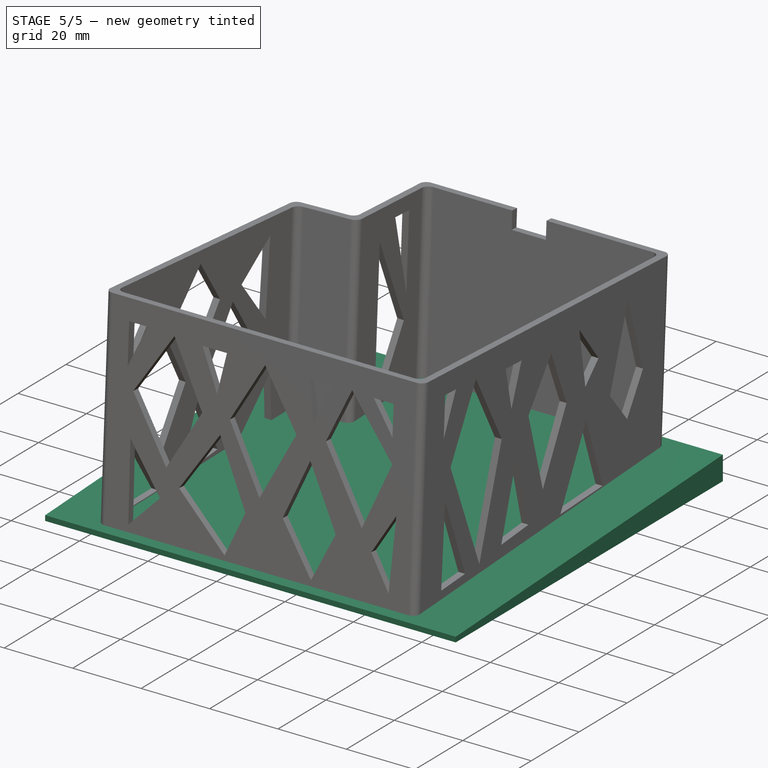
[diagram: stage 5 of 5 — iso view after this stage's code; geometry added in this stage tinted green]
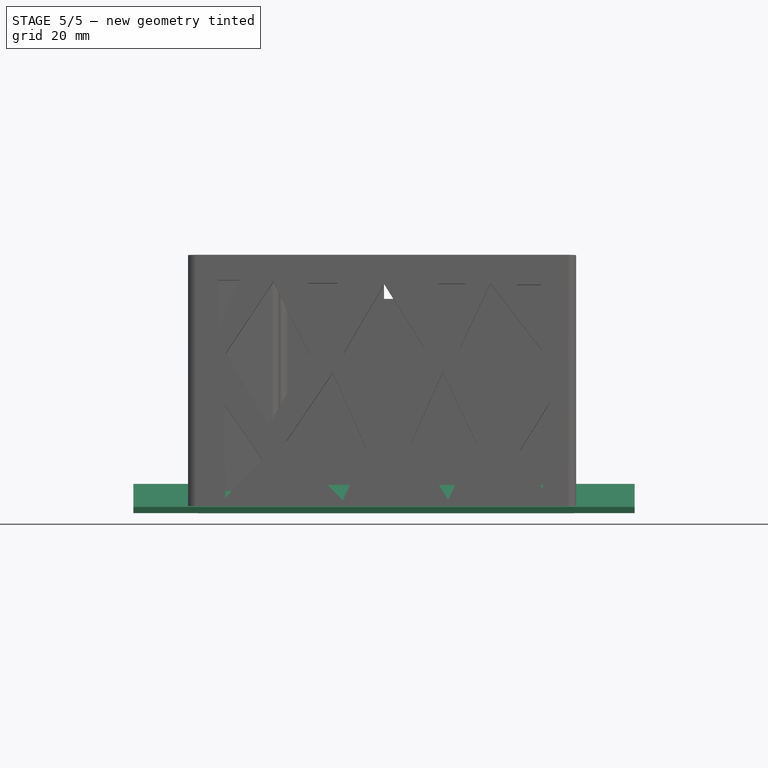
[diagram: stage 5 of 5 — front view after this stage's code; geometry added in this stage tinted green]
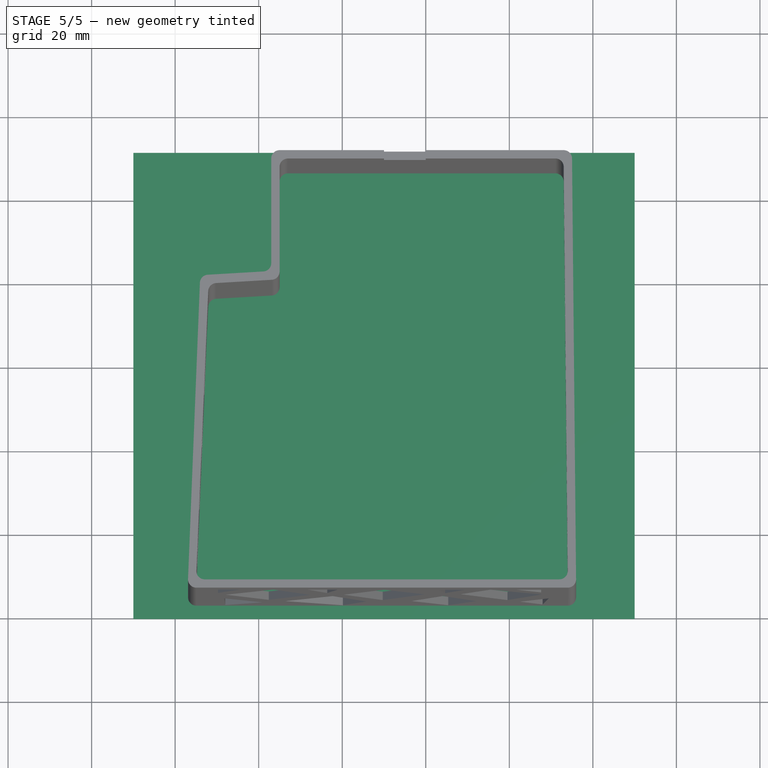
[diagram: stage 5 of 5 — top view after this stage's code; geometry added in this stage tinted green]
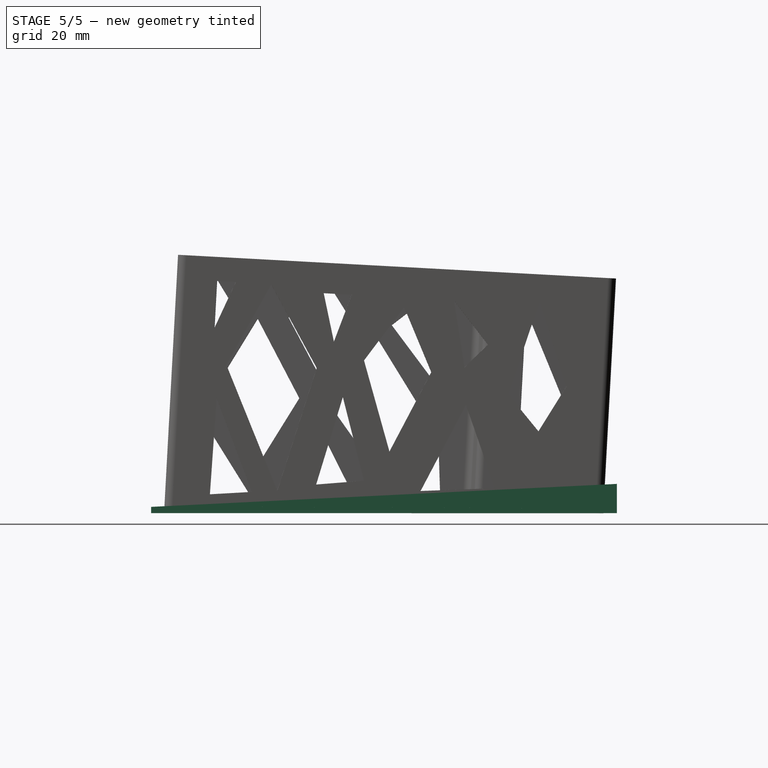
[diagram: stage 5 of 5 — right view after this stage's code; geometry added in this stage tinted green]
FEATURE [Part::Feature] wire002
  shape: bbox 111.5 x 7 x 2e-07 mm, 1 faces, 0 solids (baked)
FEATURE [Part::Extrusion] LinearExtrude001
  Base = -> wire002
  Dir = (0,0,120)
  Solid = true
FEATURE [Part::FeaturePython] RefineLinearExtrude001  # WARN: FeaturePython — macro-defined, semantics opaque (R4)
  Base = -> LinearExtrude001
  Placement = pos=(-10,-0.1,-0.1) rot=(0.57735,0.57735,0.57735;2.0944rad)
FEATURE [Part::Feature] wire005
  shape: bbox 111 x 6 x 2e-07 mm, 1 faces, 0 solids (baked)
FEATURE [Part::Extrusion] LinearExtrude003
  Base = -> wire005
  Dir = (0,0,120)
  Solid = true
FEATURE [Part::FeaturePython] RefineLinearExtrude003  # WARN: FeaturePython — macro-defined, semantics opaque (R4)
  Base = -> LinearExtrude003
  Placement = pos=(-10,-0.1,-0.1) rot=(0.57735,0.57735,0.57735;2.0944rad)
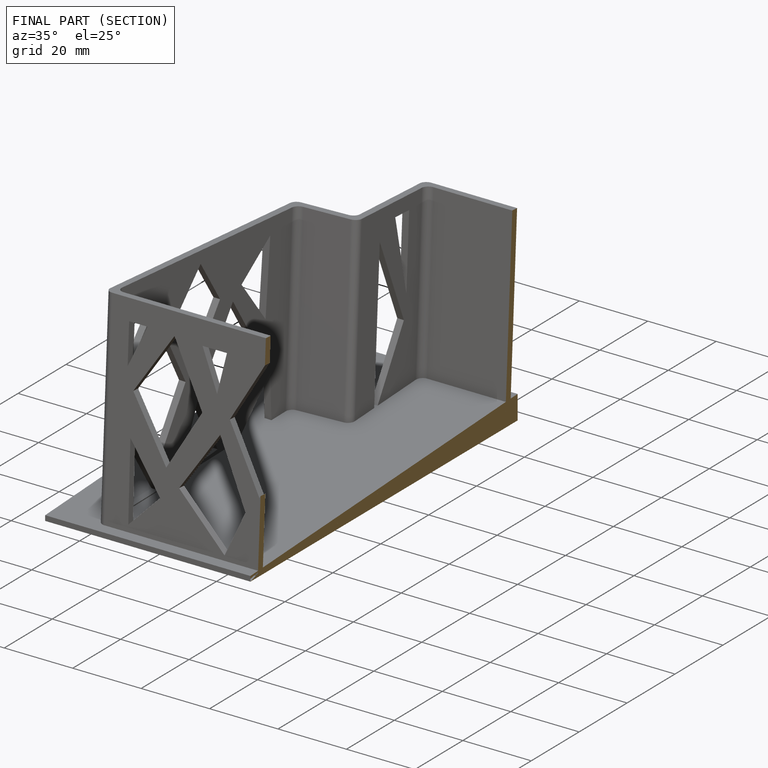
[diagram: finished part — half-section view (interior)]
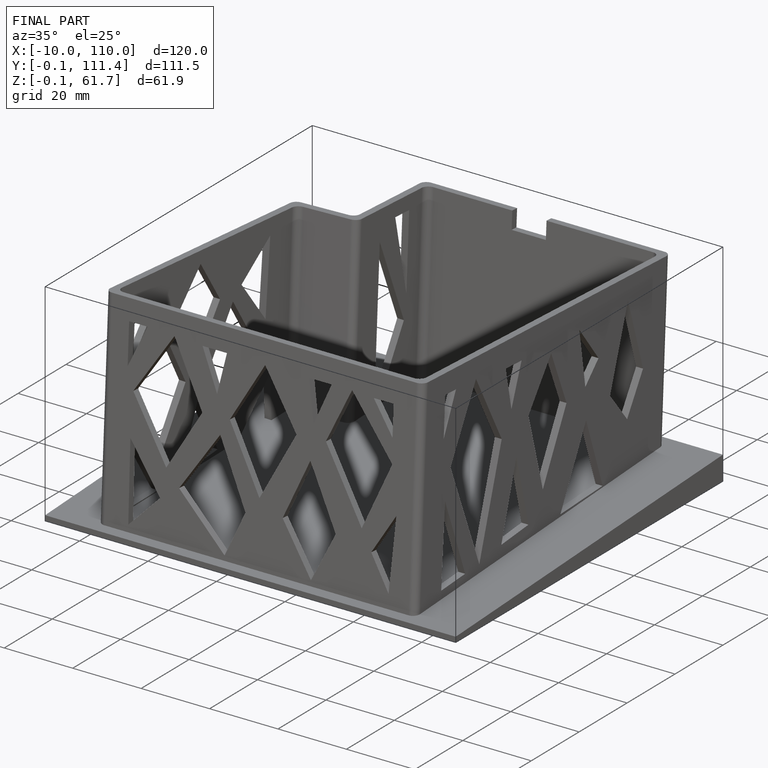
[diagram: finished part — iso view with bounding-box wireframe]
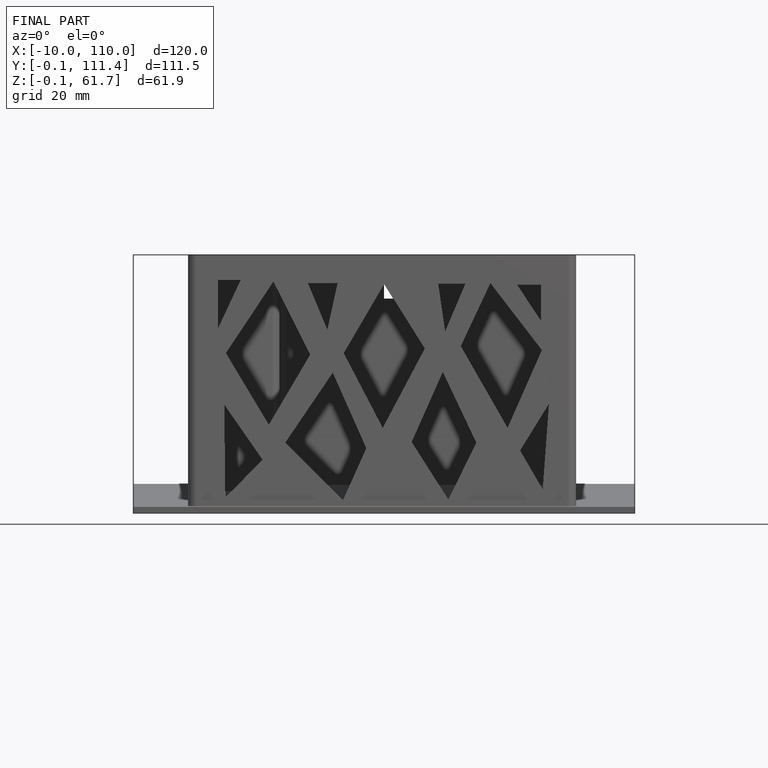
[diagram: finished part — front view with bounding-box wireframe]
